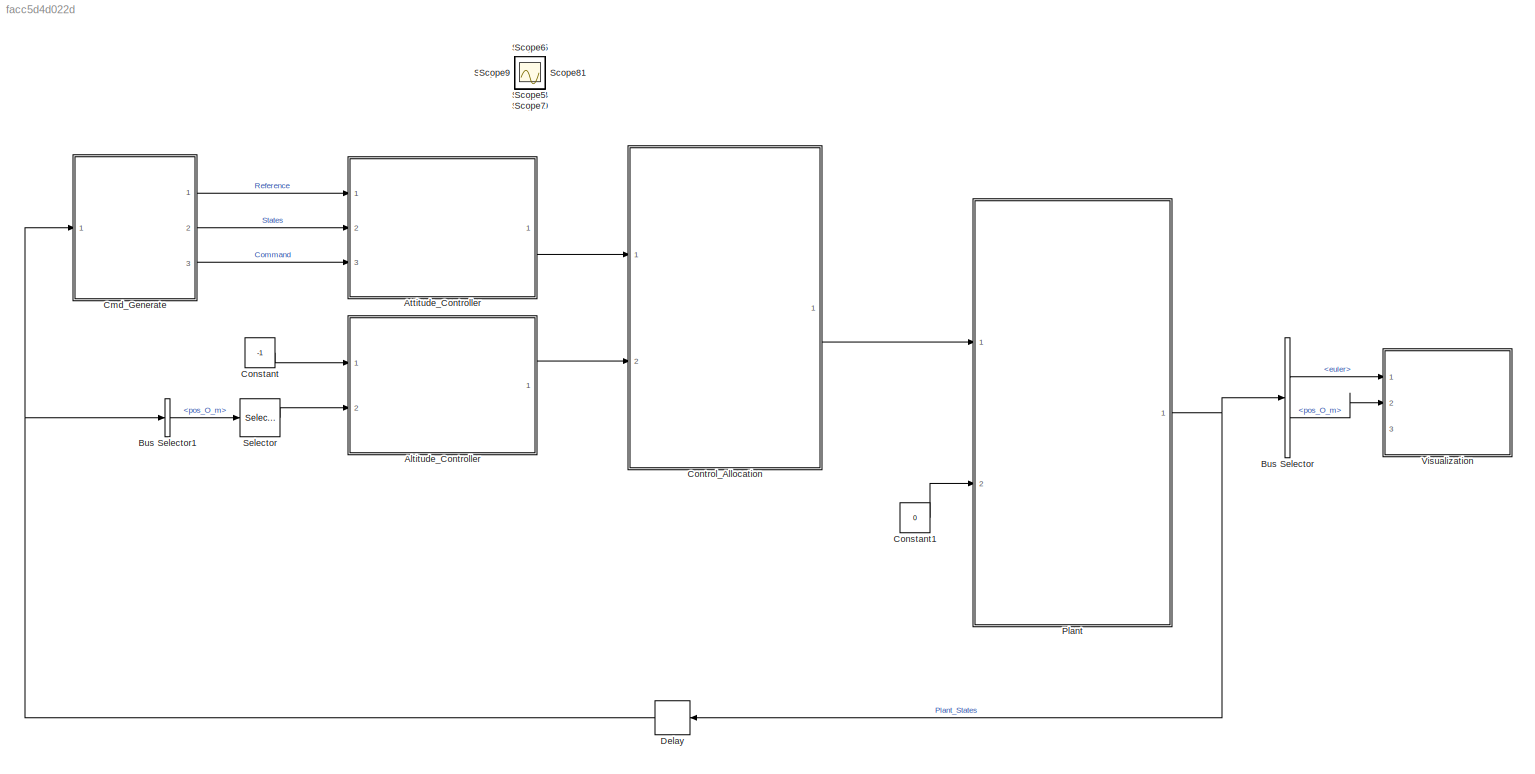
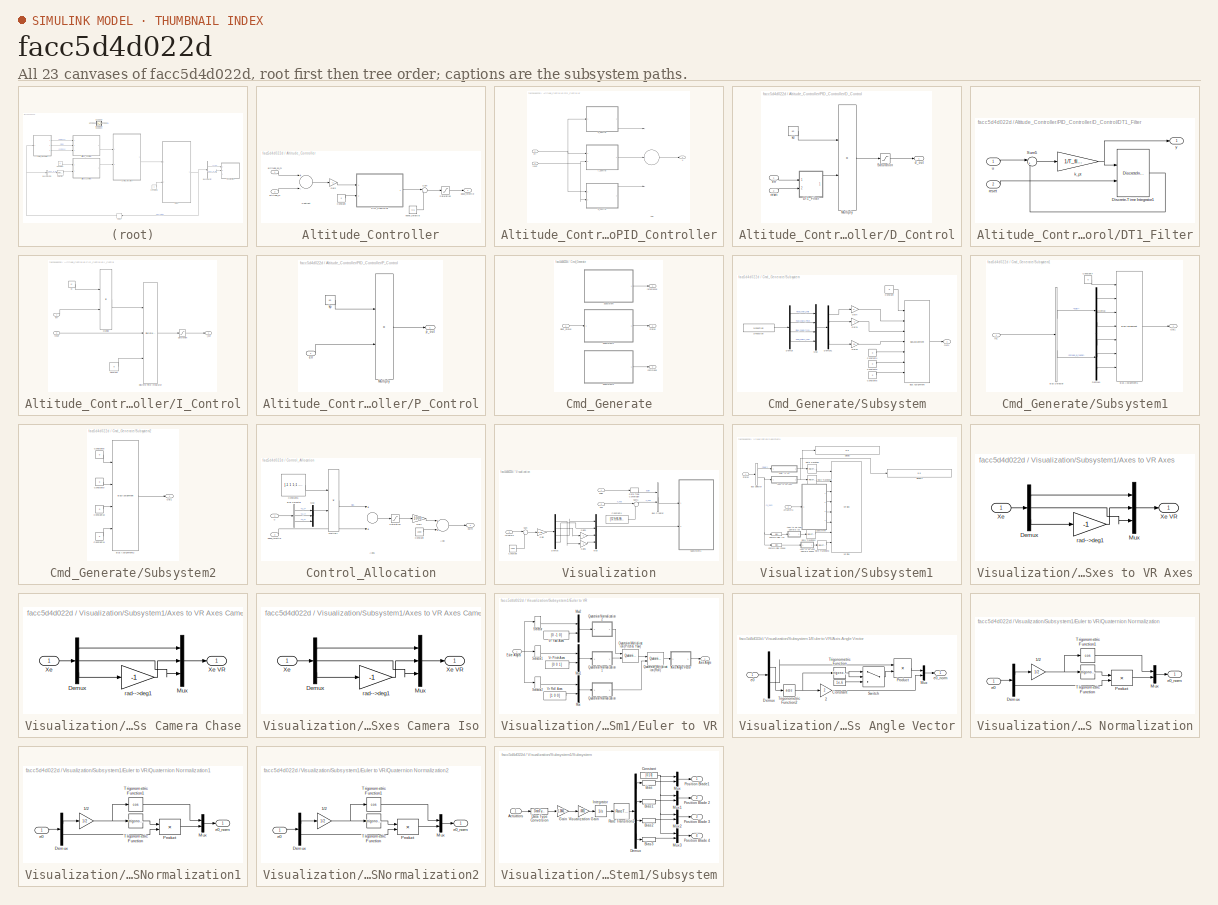
[diagram: thumbnail index - all 23 canvases of the model, root first then tree order]
MODEL slx_facc5d4d022d
KIND model
BLOCK [SubSystem] Altitude_Controller
  Ports = [2, 1]
  RequestExecContextInheritance = off
BLOCK [Constant] Altitude_Controller/Constant
  OutDataTypeStr = Inherit: Inherit via back propagation
  Value = 0
BLOCK [Gain] Altitude_Controller/Gain
  Gain = -1
  ParamDataTypeStr = Inherit: Inherit via internal rule
  SaturateOnIntegerOverflow = off
BLOCK [SubSystem] Altitude_Controller/PID_Controller
  Ports = [2, 1]
  RequestExecContextInheritance = off
BLOCK [Sum] Altitude_Controller/PID_Controller/Add
  AccumDataTypeStr = Inherit: Same as first input
  InputSameDT = off
  Inputs = +++
  OutDataTypeStr = Inherit: Inherit via internal rule
  Ports = [3, 1]
  SaturateOnIntegerOverflow = off
BLOCK [SubSystem] Altitude_Controller/PID_Controller/D_Control
  Ports = [2, 1]
  RequestExecContextInheritance = off
BLOCK [SubSystem] Altitude_Controller/PID_Controller/D_Control/DT1_Filter
  Ports = [2, 1]
  RequestExecContextInheritance = off
BLOCK [DiscreteIntegrator] Altitude_Controller/PID_Controller/D_Control/DT1_Filter/Discrete-Time Integrator1
  ExternalReset = level
  ICPrevOutput = DiscIntNeverNeededParam
  ICPrevScaledInput = DiscIntNeverNeededParam
  Ports = [2, 1]
  SampleTime = -1
BLOCK [Sum] Altitude_Controller/PID_Controller/D_Control/DT1_Filter/Sum5
  IconShape = round
  InputSameDT = off
  Inputs = |+-
  OutDataTypeStr = Inherit: Inherit via internal rule
  Ports = [2, 1]
  SaturateOnIntegerOverflow = off
BLOCK [Gain] Altitude_Controller/PID_Controller/D_Control/DT1_Filter/k_pt
  Gain = 1/T_filter
  ParamDataTypeStr = Inherit: Inherit via internal rule
  SaturateOnIntegerOverflow = off
BLOCK [Inport] Altitude_Controller/PID_Controller/D_Control/DT1_Filter/reset
  IconDisplay = Port number
  Port = 2
BLOCK [Inport] Altitude_Controller/PID_Controller/D_Control/DT1_Filter/u
  IconDisplay = Port number
BLOCK [Outport] Altitude_Controller/PID_Controller/D_Control/DT1_Filter/y
  IconDisplay = Port number
BLOCK [Product] Altitude_Controller/PID_Controller/D_Control/Multiply
  InputSameDT = off
  Ports = [2, 1]
  RndMeth = Floor
  SaturateOnIntegerOverflow = off
BLOCK [Saturate] Altitude_Controller/PID_Controller/D_Control/Saturation
  InputPortMap = u0
  LowerLimit = min_d
  Ports = [1, 1]
  UpperLimit = max_d
BLOCK [Outport] Altitude_Controller/PID_Controller/D_Control/d_out
  IconDisplay = Port number
BLOCK [Inport] Altitude_Controller/PID_Controller/D_Control/err
  IconDisplay = Port number
BLOCK [Constant] Altitude_Controller/PID_Controller/D_Control/kd
  OutDataTypeStr = single
  Value = kd
BLOCK [Inport] Altitude_Controller/PID_Controller/D_Control/reset
  IconDisplay = Port number
  Port = 2
BLOCK [SubSystem] Altitude_Controller/PID_Controller/I_Control
  Ports = [2, 1]
  RequestExecContextInheritance = off
BLOCK [Constant] Altitude_Controller/PID_Controller/I_Control/Constant
  OutDataTypeStr = single
  Value = 0
BLOCK [DiscreteIntegrator] Altitude_Controller/PID_Controller/I_Control/Discrete-Time Integrator
  ExternalReset = level
  ICPrevOutput = DiscIntNeverNeededParam
  ICPrevScaledInput = DiscIntNeverNeededParam
  InitialConditionSetting = Auto
  InitialConditionSource = external
  Ports = [3, 1]
  SampleTime = -1
BLOCK [Product] Altitude_Controller/PID_Controller/I_Control/Multiply
  InputSameDT = off
  Ports = [2, 1]
  RndMeth = Floor
  SaturateOnIntegerOverflow = off
BLOCK [Saturate] Altitude_Controller/PID_Controller/I_Control/Saturation
  InputPortMap = u0
  LowerLimit = min_i
  Ports = [1, 1]
  UpperLimit = max_i
BLOCK [Inport] Altitude_Controller/PID_Controller/I_Control/err
  IconDisplay = Port number
BLOCK [Outport] Altitude_Controller/PID_Controller/I_Control/i_out
  IconDisplay = Port number
BLOCK [Constant] Altitude_Controller/PID_Controller/I_Control/ki
  OutDataTypeStr = single
  Value = ki
BLOCK [Inport] Altitude_Controller/PID_Controller/I_Control/reset
  IconDisplay = Port number
  Port = 2
BLOCK [SubSystem] Altitude_Controller/PID_Controller/P_Control
  Ports = [1, 1]
  RequestExecContextInheritance = off
BLOCK [Product] Altitude_Controller/PID_Controller/P_Control/Multiply
  InputSameDT = off
  Ports = [2, 1]
  RndMeth = Floor
  SaturateOnIntegerOverflow = off
BLOCK [Inport] Altitude_Controller/PID_Controller/P_Control/err
  IconDisplay = Port number
BLOCK [Constant] Altitude_Controller/PID_Controller/P_Control/kp
  OutDataTypeStr = single
  Value = kp
BLOCK [Outport] Altitude_Controller/PID_Controller/P_Control/p_out
  IconDisplay = Port number
BLOCK [Inport] Altitude_Controller/PID_Controller/err
  IconDisplay = Port number
BLOCK [Inport] Altitude_Controller/PID_Controller/reset
  IconDisplay = Port number
  Port = 2
BLOCK [Outport] Altitude_Controller/PID_Controller/u
  IconDisplay = Port number
BLOCK [Saturate] Altitude_Controller/Saturation
  InputPortMap = u0
  LowerLimit = -1
  Ports = [1, 1]
  UpperLimit = 1
BLOCK [Sum] Altitude_Controller/Subtract
  InputSameDT = off
  Inputs = +-
  OutDataTypeStr = Inherit: Inherit via internal rule
  Ports = [2, 1]
  SaturateOnIntegerOverflow = off
BLOCK [Sum] Altitude_Controller/Sum
  IconShape = round
  InputSameDT = off
  Inputs = |++
  OutDataTypeStr = Inherit: Inherit via internal rule
  Ports = [2, 1]
  SaturateOnIntegerOverflow = off
BLOCK [Inport] Altitude_Controller/altitude_m
  IconDisplay = Port number
  Port = 2
BLOCK [Inport] Altitude_Controller/altitude_sp_m
  IconDisplay = Port number
BLOCK [Outport] Altitude_Controller/base_throttle
  IconDisplay = Port number
BLOCK [Constant] Altitude_Controller/hover_throttle
  OutDataTypeStr = Inherit: Inherit via back propagation
  Value = 0.5
BLOCK [ModelReference] Attitude_Controller
  ModelNameDialog = PID.slx
  ModelReferenceVersion = 1.68
  Ports = [3, 1]
BLOCK [BusSelector] Bus Selector
  OutputAsBus = off
  OutputSignals = euler,pos_O_m
  Ports = [1, 2]
BLOCK [BusSelector] Bus Selector1
  OutputAsBus = off
  OutputSignals = pos_O_m
  Ports = [1, 1]
BLOCK [SubSystem] Cmd_Generate
  Ports = [1, 3]
  RequestExecContextInheritance = off
BLOCK [Inport] Cmd_Generate/Plant_States
  IconDisplay = Port number
BLOCK [SubSystem] Cmd_Generate/Subsystem
  Ports = [0, 1]
  RequestExecContextInheritance = off
BLOCK [BusAssignment] Cmd_Generate/Subsystem/Bus Assignment
  AssignedSignals = phi_ref_rad,theta_ref_rad,psi_ref_rad,p_ref_radDs,q_ref_radDs,r_ref_radDs
  Ports = [7, 1]
BLOCK [Constant] Cmd_Generate/Subsystem/Constant
  OutDataTypeStr = Bus: Reference
  Value = 0
BLOCK [Constant] Cmd_Generate/Subsystem/Constant4
  OutDataTypeStr = Inherit: Inherit via back propagation
  Value = 0
BLOCK [Constant] Cmd_Generate/Subsystem/Constant5
  OutDataTypeStr = Inherit: Inherit via back propagation
  Value = 0
BLOCK [Constant] Cmd_Generate/Subsystem/Constant6
  OutDataTypeStr = Inherit: Inherit via back propagation
  Value = 0
BLOCK [Demux] Cmd_Generate/Subsystem/Demux
  DisplayOption = bar
  Ports = [1, 4]
BLOCK [Demux] Cmd_Generate/Subsystem/Demux1
  DisplayOption = bar
  Ports = [1, 4]
BLOCK [Gain] Cmd_Generate/Subsystem/Gain
  LockScale = on
  OutDataTypeStr = single
  ParamDataTypeStr = Inherit: Inherit via internal rule
  SaturateOnIntegerOverflow = off
BLOCK [Gain] Cmd_Generate/Subsystem/Gain1
  Gain = -1
  LockScale = on
  OutDataTypeStr = single
  ParamDataTypeStr = Inherit: Inherit via internal rule
  SaturateOnIntegerOverflow = off
BLOCK [Gain] Cmd_Generate/Subsystem/Gain2
  Gain = 0.1
  LockScale = on
  OutDataTypeStr = single
  ParamDataTypeStr = Inherit: Inherit via internal rule
  SaturateOnIntegerOverflow = off
BLOCK [Mux] Cmd_Generate/Subsystem/Mux
  DisplayOption = bar
  Ports = [4, 1]
BLOCK [Outport] Cmd_Generate/Subsystem/Out1
  IconDisplay = Port number
BLOCK [S-Function] Cmd_Generate/Subsystem/S-Function
  EnableBusSupport = off
  FunctionName = serialToMavlink_RcRaw
  Ports = [0, 1]
  SFcnIsStateOwnerBlock = off
  SFunctionDeploymentMode = off
BLOCK [SubSystem] Cmd_Generate/Subsystem1
  Ports = [1, 1]
  RequestExecContextInheritance = off
BLOCK [BusAssignment] Cmd_Generate/Subsystem1/Bus Assignment1
  AssignedSignals = phi_rad,theta_rad,psi_rad,p_radDs,q_radDs,r_radDs
  Ports = [7, 1]
BLOCK [BusSelector] Cmd_Generate/Subsystem1/Bus Selector
  OutputAsBus = off
  OutputSignals = euler,omega_B_radDs
  Ports = [1, 2]
BLOCK [Constant] Cmd_Generate/Subsystem1/Constant7
  OutDataTypeStr = Bus: States
  Value = 0
BLOCK [Demux] Cmd_Generate/Subsystem1/Demux
  DisplayOption = bar
  Outputs = 3
  Ports = [1, 3]
BLOCK [Demux] Cmd_Generate/Subsystem1/Demux1
  DisplayOption = bar
  Outputs = 3
  Ports = [1, 3]
BLOCK [Inport] Cmd_Generate/Subsystem1/In1
  IconDisplay = Port number
BLOCK [Outport] Cmd_Generate/Subsystem1/Out1
  IconDisplay = Port number
BLOCK [SubSystem] Cmd_Generate/Subsystem2
  Ports = [0, 1]
  RequestExecContextInheritance = off
BLOCK [BusAssignment] Cmd_Generate/Subsystem2/Bus Assignment2
  AssignedSignals = reset,mode,base_throttle
  Ports = [4, 1]
BLOCK [Constant] Cmd_Generate/Subsystem2/Constant10
  OutDataTypeStr = Inherit: Inherit via back propagation
  Value = 0
BLOCK [Constant] Cmd_Generate/Subsystem2/Constant11
  OutDataTypeStr = Inherit: Inherit via back propagation
  Value = 0
BLOCK [Constant] Cmd_Generate/Subsystem2/Constant8
  OutDataTypeStr = Bus: Command
  Value = 0
BLOCK [Constant] Cmd_Generate/Subsystem2/Constant9
  OutDataTypeStr = Inherit: Inherit via back propagation
  Value = 0
BLOCK [Outport] Cmd_Generate/Subsystem2/Out1
  IconDisplay = Port number
BLOCK [Outport] Cmd_Generate/command
  IconDisplay = Port number
  Port = 3
BLOCK [Outport] Cmd_Generate/refenrence
  IconDisplay = Port number
BLOCK [Outport] Cmd_Generate/states
  IconDisplay = Port number
  Port = 2
BLOCK [Constant] Constant
  OutDataTypeStr = Inherit: Inherit via back propagation
  Value = -1
BLOCK [Constant] Constant1
  OutDataTypeStr = Inherit: Inherit via back propagation
  Value = 0
BLOCK [SubSystem] Control_Allocation
  Ports = [2, 1]
  RequestExecContextInheritance = off
BLOCK [Sum] Control_Allocation/Add
  InputSameDT = off
  OutDataTypeStr = Inherit: Inherit via internal rule
  Ports = [2, 1]
  SaturateOnIntegerOverflow = off
BLOCK [Sum] Control_Allocation/Add1
  InputSameDT = off
  Ports = [2, 1]
  SaturateOnIntegerOverflow = off
BLOCK [BusSelector] Control_Allocation/Bus Selector
  OutputAsBus = off
  OutputSignals = u_x,u_y,u_z
  Ports = [1, 3]
BLOCK [Constant] Control_Allocation/Constant
  OutDataTypeStr = uint16
  Value = 1000
BLOCK [Constant] Control_Allocation/Constant6
  OutDataTypeStr = single
  Value = [-1 1 1;1 -1 1;1 1 -1;-1 -1 -1]
BLOCK [Gain] Control_Allocation/Gain
  Gain = 1000
  OutDataTypeStr = uint16
  ParamDataTypeStr = Inherit: Inherit via internal rule
  SaturateOnIntegerOverflow = off
BLOCK [Product] Control_Allocation/Multiply
  InputSameDT = off
  Multiplication = Matrix(*)
  Ports = [2, 1]
  RndMeth = Floor
  SaturateOnIntegerOverflow = off
BLOCK [Mux] Control_Allocation/Mux
  DisplayOption = bar
  Inputs = 3
  Ports = [3, 1]
BLOCK [Saturate] Control_Allocation/Saturation
  InputPortMap = u0
  LowerLimit = 0
  Ports = [1, 1]
  UpperLimit = 1
BLOCK [Inport] Control_Allocation/base_throttle
  IconDisplay = Port number
  Port = 2
BLOCK [Outport] Control_Allocation/pwm
  IconDisplay = Port number
BLOCK [Inport] Control_Allocation/u
  IconDisplay = Port number
BLOCK [Delay] Delay
  DelayLength = 1
  InputPortMap = u0
  Ports = [1, 1]
BLOCK [ModelReference] Plant
  ModelNameDialog = Model.slx
  ModelReferenceVersion = 1.125
  Ports = [2, 1]
BLOCK [Scope] Scope
  Floating = off
  IOType = viewer
  NumInputPorts = 1
  Ports = []
  ScopeSpecificationString = Simulink.scopes.TimeScopeBlockCfg('CurrentConfiguration', extmgr.ConfigurationSet(extmgr.Configuration('Core','General UI',true),extmgr.Configuration('Core','Source UI',true),extmgr.Configuration('Sources','WiredSimulink',true),extmgr.Configuration('Visuals','Time Domain',true,'SerializedDisplays',{struct('MinYLimReal','-0.32725','MaxYLimReal','0.32725','YLabelReal','','MinYLimMag','0.00000','MaxY...<+1350ch>
BLOCK [Scope] Scope1
  Floating = off
  IOType = viewer
  NumInputPorts = 1
  Ports = []
  ScopeSpecificationString = Simulink.scopes.TimeScopeBlockCfg('CurrentConfiguration', extmgr.ConfigurationSet(extmgr.Configuration('Core','General UI',true),extmgr.Configuration('Core','Source UI',true),extmgr.Configuration('Sources','WiredSimulink',true,'DataLoggingVariableName','ScopeData1'),extmgr.Configuration('Visuals','Time Domain',true,'SerializedDisplays',{struct('MinYLimReal','-0.32725','MaxYLimReal','0.32725','YLab...<+1389ch>
BLOCK [Scope] Scope10
  Floating = off
  IOType = viewer
  NumInputPorts = 1
  Ports = []
  ScopeSpecificationString = Simulink.scopes.TimeScopeBlockCfg('CurrentConfiguration', extmgr.ConfigurationSet(extmgr.Configuration('Core','General UI',true),extmgr.Configuration('Core','Source UI',true),extmgr.Configuration('Sources','WiredSimulink',true,'DataLoggingVariableName','ScopeData1'),extmgr.Configuration('Visuals','Time Domain',true,'SerializedDisplays',{struct('MinYLimReal','-0.00649','MaxYLimReal','0.02667','YLab...<+1389ch>
BLOCK [Scope] Scope11
  Floating = off
  IOType = viewer
  NumInputPorts = 1
  Ports = []
  ScopeSpecificationString = Simulink.scopes.TimeScopeBlockCfg('CurrentConfiguration', extmgr.ConfigurationSet(extmgr.Configuration('Core','General UI',true),extmgr.Configuration('Core','Source UI',true),extmgr.Configuration('Sources','WiredSimulink',true,'DataLoggingVariableName','ScopeData2'),extmgr.Configuration('Visuals','Time Domain',true,'SerializedDisplays',{struct('MinYLimReal','-0.5','MaxYLimReal','-0.3','YLabelReal'...<+1367ch>
BLOCK [Scope] Scope13
  Floating = off
  IOType = viewer
  NumInputPorts = 1
  Ports = []
  ScopeSpecificationString = Simulink.scopes.TimeScopeBlockCfg('CurrentConfiguration', extmgr.ConfigurationSet(extmgr.Configuration('Core','General UI',true),extmgr.Configuration('Core','Source UI',true),extmgr.Configuration('Sources','WiredSimulink',true,'DataLoggingVariableName','ScopeData1'),extmgr.Configuration('Visuals','Time Domain',true,'SerializedDisplays',{struct('MinYLimReal','0.62144','MaxYLimReal','0.82144','YLabe...<+1387ch>
BLOCK [Scope] Scope14
  Floating = off
  IOType = viewer
  NumInputPorts = 1
  Ports = []
  ScopeSpecificationString = Simulink.scopes.TimeScopeBlockCfg('CurrentConfiguration', extmgr.ConfigurationSet(extmgr.Configuration('Core','General UI',true),extmgr.Configuration('Core','Source UI',true),extmgr.Configuration('Sources','WiredSimulink',true,'DataLoggingVariableName','ScopeData2'),extmgr.Configuration('Visuals','Time Domain',true,'SerializedDisplays',{struct('MinYLimReal','0.24731','MaxYLimReal','0.44731','YLabe...<+1387ch>
BLOCK [Scope] Scope15
  Floating = off
  IOType = viewer
  NumInputPorts = 1
  Ports = []
  ScopeSpecificationString = Simulink.scopes.TimeScopeBlockCfg('CurrentConfiguration', extmgr.ConfigurationSet(extmgr.Configuration('Core','General UI',true),extmgr.Configuration('Core','Source UI',true),extmgr.Configuration('Sources','WiredSimulink',true,'DataLoggingVariableName','ScopeData1'),extmgr.Configuration('Visuals','Time Domain',true,'SerializedDisplays',{struct('MinYLimReal','-0.00281','MaxYLimReal','0.00731','YLab...<+1502ch>
BLOCK [Scope] Scope2
  Floating = off
  IOType = viewer
  NumInputPorts = 1
  Ports = []
  ScopeSpecificationString = Simulink.scopes.TimeScopeBlockCfg('CurrentConfiguration', extmgr.ConfigurationSet(extmgr.Configuration('Core','General UI',true),extmgr.Configuration('Core','Source UI',true),extmgr.Configuration('Sources','WiredSimulink',true,'DataLoggingVariableName','ScopeData2'),extmgr.Configuration('Visuals','Time Domain',true,'SerializedDisplays',{struct('MinYLimReal','-77.53625','MaxYLimReal','697.82627','Y...<+1399ch>
BLOCK [Scope] Scope3
  Floating = off
  IOType = viewer
  NumInputPorts = 1
  Ports = []
  ScopeSpecificationString = Simulink.scopes.TimeScopeBlockCfg('CurrentConfiguration', extmgr.ConfigurationSet(extmgr.Configuration('Core','General UI',true),extmgr.Configuration('Core','Source UI',true),extmgr.Configuration('Sources','WiredSimulink',true,'DataLoggingVariableName','ScopeData3'),extmgr.Configuration('Visuals','Time Domain',true,'SerializedDisplays',{struct('MinYLimReal','-71.5585','MaxYLimReal','644.02649','YL...<+1397ch>
BLOCK [Scope] Scope4
  Floating = off
  IOType = viewer
  NumInputPorts = 1
  Ports = []
  ScopeSpecificationString = Simulink.scopes.TimeScopeBlockCfg('CurrentConfiguration', extmgr.ConfigurationSet(extmgr.Configuration('Core','General UI',true),extmgr.Configuration('Core','Source UI',true),extmgr.Configuration('Sources','WiredSimulink',true,'DataLoggingVariableName','ScopeData4'),extmgr.Configuration('Visuals','Time Domain',true,'SerializedDisplays',{struct('MinYLimReal','-77.57989','MaxYLimReal','698.21897','Y...<+1399ch>
BLOCK [Scope] Scope5
  Floating = off
  IOType = viewer
  NumInputPorts = 1
  Ports = []
  ScopeSpecificationString = Simulink.scopes.TimeScopeBlockCfg('CurrentConfiguration', extmgr.ConfigurationSet(extmgr.Configuration('Core','General UI',true),extmgr.Configuration('Core','Source UI',true),extmgr.Configuration('Sources','WiredSimulink',true,'DataLoggingVariableName','ScopeData5'),extmgr.Configuration('Visuals','Time Domain',true,'SerializedDisplays',{struct('MinYLimReal','0.01375','MaxYLimReal','0.01625','YLabe...<+1420ch>
BLOCK [Scope] Scope6
  Floating = off
  IOType = viewer
  NumInputPorts = 1
  Ports = []
  ScopeSpecificationString = Simulink.scopes.TimeScopeBlockCfg('CurrentConfiguration', extmgr.ConfigurationSet(extmgr.Configuration('Core','General UI',true),extmgr.Configuration('Core','Source UI',true),extmgr.Configuration('Sources','WiredSimulink',true,'DataLoggingVariableName','ScopeData6'),extmgr.Configuration('Visuals','Time Domain',true,'SerializedDisplays',{struct('MinYLimReal','0.00375','MaxYLimReal','0.00625','YLabe...<+1395ch>
BLOCK [Scope] Scope7
  Floating = off
  IOType = viewer
  NumInputPorts = 1
  Ports = []
  ScopeSpecificationString = Simulink.scopes.TimeScopeBlockCfg('CurrentConfiguration', extmgr.ConfigurationSet(extmgr.Configuration('Core','General UI',true),extmgr.Configuration('Core','Source UI',true),extmgr.Configuration('Sources','WiredSimulink',true,'DataLoggingVariableName','ScopeData1'),extmgr.Configuration('Visuals','Time Domain',true,'SerializedDisplays',{struct('MinYLimReal','2.30574','MaxYLimReal','3.70824','YLabe...<+1419ch>
BLOCK [Scope] Scope8
  Floating = off
  IOType = viewer
  NumInputPorts = 1
  Ports = []
  ScopeSpecificationString = Simulink.scopes.TimeScopeBlockCfg('CurrentConfiguration', extmgr.ConfigurationSet(extmgr.Configuration('Core','General UI',true),extmgr.Configuration('Core','Source UI',true),extmgr.Configuration('Sources','WiredSimulink',true,'DataLoggingVariableName','ScopeData1'),extmgr.Configuration('Visuals','Time Domain',true,'SerializedDisplays',{struct('MinYLimReal','-0.5','MaxYLimReal','-0.3','YLabelReal'...<+1367ch>
BLOCK [Scope] Scope9
  Floating = off
  IOType = viewer
  NumInputPorts = 1
  Ports = []
  ScopeSpecificationString = Simulink.scopes.TimeScopeBlockCfg('CurrentConfiguration', extmgr.ConfigurationSet(extmgr.Configuration('Core','General UI',true),extmgr.Configuration('Core','Source UI',true),extmgr.Configuration('Sources','WiredSimulink',true,'DataLoggingVariableName','ScopeData2'),extmgr.Configuration('Visuals','Time Domain',true,'SerializedDisplays',{struct('MinYLimReal','-0.5','MaxYLimReal','-0.3','YLabelReal'...<+1367ch>
BLOCK [Selector] Selector
  IndexOptions = Index vector (dialog)
  Indices = 3
  InputPortWidth = 3
  OutputSizes = 1
  Ports = [1, 1]
BLOCK [SubSystem] Visualization
  Ports = [3]
  RequestExecContextInheritance = off
BLOCK [Inport] Visualization/Actuators
  IconDisplay = Port number
  Port = 3
BLOCK [BusCreator] Visualization/Bus Creator
  DisplayOption = bar
  InheritFromInputs = on
  Inputs = 2
  Ports = [2, 1]
BLOCK [Constant] Visualization/Constant
  OutDataTypeStr = uint16
  Value = 1000
BLOCK [Constant] Visualization/Constant4
  OutDataTypeStr = Inherit: Inherit via back propagation
  Value = [57.9;95.99;-0.67]
BLOCK [DataTypeConversion] Visualization/Data Type Conversion
  RndMeth = Floor
  SaturateOnIntegerOverflow = off
BLOCK [Demux] Visualization/Demux
  DisplayOption = bar
  Ports = [1, 4]
BLOCK [Inport] Visualization/Euler
  IconDisplay = Port number
BLOCK [Gain] Visualization/Gain
  Gain = 0.05
  ParamDataTypeStr = Inherit: Inherit via internal rule
  SaturateOnIntegerOverflow = off
BLOCK [Gain] Visualization/Gain1
  Gain = -1
  ParamDataTypeStr = Inherit: Inherit via internal rule
  SaturateOnIntegerOverflow = off
BLOCK [Gain] Visualization/Gain2
  Gain = -1
  ParamDataTypeStr = Inherit: Inherit via internal rule
  SaturateOnIntegerOverflow = off
BLOCK [Mux] Visualization/Mux
  DisplayOption = bar
  Ports = [4, 1]
BLOCK [Inport] Visualization/Pos
  IconDisplay = Port number
  Port = 2
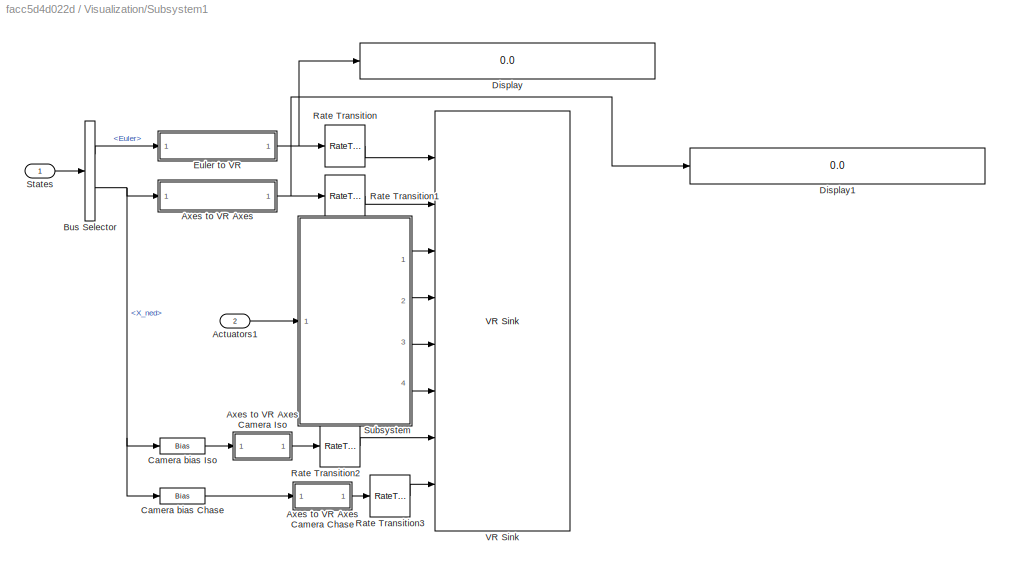
BLOCK [SubSystem] Visualization/Subsystem1
  Ports = [2]
  RequestExecContextInheritance = off
BLOCK [Inport] Visualization/Subsystem1/Actuators1
  IconDisplay = Port number
  Port = 2
BLOCK [SubSystem] Visualization/Subsystem1/Axes to VR Axes
  Ports = [1, 1]
  RequestExecContextInheritance = off
BLOCK [SubSystem] Visualization/Subsystem1/Axes to VR Axes Camera Chase
  Ports = [1, 1]
  RequestExecContextInheritance = off
BLOCK [Demux] Visualization/Subsystem1/Axes to VR Axes Camera Chase/Demux
  Outputs = 3
  Ports = [1, 3]
BLOCK [Mux] Visualization/Subsystem1/Axes to VR Axes Camera Chase/Mux
  DisplayOption = bar
  Inputs = 3
  Ports = [3, 1]
BLOCK [Inport] Visualization/Subsystem1/Axes to VR Axes Camera Chase/Xe
  IconDisplay = Port number
BLOCK [Outport] Visualization/Subsystem1/Axes to VR Axes Camera Chase/Xe VR
  IconDisplay = Port number
BLOCK [Gain] Visualization/Subsystem1/Axes to VR Axes Camera Chase/rad-->deg1
  Gain = -1
BLOCK [SubSystem] Visualization/Subsystem1/Axes to VR Axes Camera Iso
  Ports = [1, 1]
  RequestExecContextInheritance = off
BLOCK [Demux] Visualization/Subsystem1/Axes to VR Axes Camera Iso/Demux
  Outputs = 3
  Ports = [1, 3]
BLOCK [Mux] Visualization/Subsystem1/Axes to VR Axes Camera Iso/Mux
  DisplayOption = bar
  Inputs = 3
  Ports = [3, 1]
BLOCK [Inport] Visualization/Subsystem1/Axes to VR Axes Camera Iso/Xe
  IconDisplay = Port number
BLOCK [Outport] Visualization/Subsystem1/Axes to VR Axes Camera Iso/Xe VR
  IconDisplay = Port number
BLOCK [Gain] Visualization/Subsystem1/Axes to VR Axes Camera Iso/rad-->deg1
  Gain = -1
BLOCK [Demux] Visualization/Subsystem1/Axes to VR Axes/Demux
  Outputs = 3
  Ports = [1, 3]
BLOCK [Mux] Visualization/Subsystem1/Axes to VR Axes/Mux
  DisplayOption = bar
  Inputs = 3
  Ports = [3, 1]
BLOCK [Inport] Visualization/Subsystem1/Axes to VR Axes/Xe
  IconDisplay = Port number
BLOCK [Outport] Visualization/Subsystem1/Axes to VR Axes/Xe VR
  IconDisplay = Port number
BLOCK [Gain] Visualization/Subsystem1/Axes to VR Axes/rad-->deg1
  Gain = -1
BLOCK [BusSelector] Visualization/Subsystem1/Bus Selector
  OutputAsBus = off
  OutputSignals = Euler,X_ned
  Ports = [1, 2]
BLOCK [Bias] Visualization/Subsystem1/Camera bias Chase
  Bias = [-4 0 -.9558]'
  SaturateOnIntegerOverflow = off
BLOCK [Bias] Visualization/Subsystem1/Camera bias Iso
  Bias = [0.9009 .99 -.6247]'
  SaturateOnIntegerOverflow = off
BLOCK [Display] Visualization/Subsystem1/Display
  Decimation = 1
  Ports = [1]
BLOCK [Display] Visualization/Subsystem1/Display1
  Decimation = 1
  Ports = [1]
BLOCK [SubSystem] Visualization/Subsystem1/Euler to VR
  Ports = [1, 1]
  RequestExecContextInheritance = off
BLOCK [Outport] Visualization/Subsystem1/Euler to VR/Axis Angle
  IconDisplay = Port number
BLOCK [SubSystem] Visualization/Subsystem1/Euler to VR/Axis Angle Vector
  Ports = [1, 1]
  RequestExecContextInheritance = off
BLOCK [Gain] Visualization/Subsystem1/Euler to VR/Axis Angle Vector/2
  Gain = 2
BLOCK [Constant] Visualization/Subsystem1/Euler to VR/Axis Angle Vector/Constant
  Value = 1e-6
BLOCK [Demux] Visualization/Subsystem1/Euler to VR/Axis Angle Vector/Demux
  Outputs = [1 3 ]
  Ports = [1, 2]
BLOCK [Mux] Visualization/Subsystem1/Euler to VR/Axis Angle Vector/Mux
  DisplayOption = bar
  Inputs = 2
  Ports = [2, 1]
BLOCK [Product] Visualization/Subsystem1/Euler to VR/Axis Angle Vector/Product
  Inputs = */
  Ports = [2, 1]
  RndMeth = Floor
BLOCK [Switch] Visualization/Subsystem1/Euler to VR/Axis Angle Vector/Switch
  Criteria = u2 ~= 0
  InputSameDT = off
  SaturateOnIntegerOverflow = off
BLOCK [Trigonometry] Visualization/Subsystem1/Euler to VR/Axis Angle Vector/Trigonometric Function
  Ports = [1, 1]
BLOCK [Trigonometry] Visualization/Subsystem1/Euler to VR/Axis Angle Vector/Trigonometric Function2
  Operator = acos
  Ports = [1, 1]
BLOCK [Inport] Visualization/Subsystem1/Euler to VR/Axis Angle Vector/e0
  IconDisplay = Port number
BLOCK [Outport] Visualization/Subsystem1/Euler to VR/Axis Angle Vector/e0_norm
  IconDisplay = Port number
BLOCK [Inport] Visualization/Subsystem1/Euler to VR/Euler Angles
  IconDisplay = Port number
BLOCK [Mux] Visualization/Subsystem1/Euler to VR/Mux
  DisplayOption = bar
  Inputs = 2
  Ports = [2, 1]
BLOCK [Mux] Visualization/Subsystem1/Euler to VR/Mux1
  DisplayOption = bar
  Inputs = 2
  Ports = [2, 1]
BLOCK [Mux] Visualization/Subsystem1/Euler to VR/Mux2
  DisplayOption = bar
  Inputs = 2
  Ports = [2, 1]
BLOCK [Reference] Visualization/Subsystem1/Euler to VR/Quaternion Multiplication (Pitch & Yaw)  REF=aerolibutil/Quaternion
Multiplication
  Ports = [2, 1]
  SourceBlock = aerolibutil/Quaternion\nMultiplication
  SourceProductBaseCode = AE
  SourceProductName = Aerospace Blockset
  SourceType = Quaternion Multiplication
BLOCK [Reference] Visualization/Subsystem1/Euler to VR/Quaternion Multiplication (Roll)  REF=aerolibutil/Quaternion
Multiplication
  Ports = [2, 1]
  SourceBlock = aerolibutil/Quaternion\nMultiplication
  SourceProductBaseCode = AE
  SourceProductName = Aerospace Blockset
  SourceType = Quaternion Multiplication
BLOCK [SubSystem] Visualization/Subsystem1/Euler to VR/Quaternion Normalization
  Ports = [1, 1]
  RequestExecContextInheritance = off
BLOCK [Gain] Visualization/Subsystem1/Euler to VR/Quaternion Normalization/1//2
  Gain = 1/2
BLOCK [Demux] Visualization/Subsystem1/Euler to VR/Quaternion Normalization/Demux
  Outputs = [1 3]
  Ports = [1, 2]
BLOCK [Mux] Visualization/Subsystem1/Euler to VR/Quaternion Normalization/Mux
  DisplayOption = bar
  Inputs = 2
  Ports = [2, 1]
BLOCK [Product] Visualization/Subsystem1/Euler to VR/Quaternion Normalization/Product
  Ports = [2, 1]
  RndMeth = Floor
BLOCK [Trigonometry] Visualization/Subsystem1/Euler to VR/Quaternion Normalization/Trigonometric Function
  Ports = [1, 1]
BLOCK [Trigonometry] Visualization/Subsystem1/Euler to VR/Quaternion Normalization/Trigonometric Function1
  Operator = cos
  Ports = [1, 1]
BLOCK [Inport] Visualization/Subsystem1/Euler to VR/Quaternion Normalization/e0
  IconDisplay = Port number
BLOCK [Outport] Visualization/Subsystem1/Euler to VR/Quaternion Normalization/e0_norm
  IconDisplay = Port number
BLOCK [SubSystem] Visualization/Subsystem1/Euler to VR/Quaternion Normalization1
  Ports = [1, 1]
  RequestExecContextInheritance = off
BLOCK [Gain] Visualization/Subsystem1/Euler to VR/Quaternion Normalization1/1//2
  Gain = 1/2
BLOCK [Demux] Visualization/Subsystem1/Euler to VR/Quaternion Normalization1/Demux
  Outputs = [1 3]
  Ports = [1, 2]
BLOCK [Mux] Visualization/Subsystem1/Euler to VR/Quaternion Normalization1/Mux
  DisplayOption = bar
  Inputs = 2
  Ports = [2, 1]
BLOCK [Product] Visualization/Subsystem1/Euler to VR/Quaternion Normalization1/Product
  Ports = [2, 1]
  RndMeth = Floor
BLOCK [Trigonometry] Visualization/Subsystem1/Euler to VR/Quaternion Normalization1/Trigonometric Function
  Ports = [1, 1]
BLOCK [Trigonometry] Visualization/Subsystem1/Euler to VR/Quaternion Normalization1/Trigonometric Function1
  Operator = cos
  Ports = [1, 1]
BLOCK [Inport] Visualization/Subsystem1/Euler to VR/Quaternion Normalization1/e0
  IconDisplay = Port number
BLOCK [Outport] Visualization/Subsystem1/Euler to VR/Quaternion Normalization1/e0_norm
  IconDisplay = Port number
BLOCK [SubSystem] Visualization/Subsystem1/Euler to VR/Quaternion Normalization2
  Ports = [1, 1]
  RequestExecContextInheritance = off
BLOCK [Gain] Visualization/Subsystem1/Euler to VR/Quaternion Normalization2/1//2
  Gain = 1/2
BLOCK [Demux] Visualization/Subsystem1/Euler to VR/Quaternion Normalization2/Demux
  Outputs = [1 3]
  Ports = [1, 2]
BLOCK [Mux] Visualization/Subsystem1/Euler to VR/Quaternion Normalization2/Mux
  DisplayOption = bar
  Inputs = 2
  Ports = [2, 1]
BLOCK [Product] Visualization/Subsystem1/Euler to VR/Quaternion Normalization2/Product
  Ports = [2, 1]
  RndMeth = Floor
BLOCK [Trigonometry] Visualization/Subsystem1/Euler to VR/Quaternion Normalization2/Trigonometric Function
  Ports = [1, 1]
BLOCK [Trigonometry] Visualization/Subsystem1/Euler to VR/Quaternion Normalization2/Trigonometric Function1
  Operator = cos
  Ports = [1, 1]
BLOCK [Inport] Visualization/Subsystem1/Euler to VR/Quaternion Normalization2/e0
  IconDisplay = Port number
BLOCK [Outport] Visualization/Subsystem1/Euler to VR/Quaternion Normalization2/e0_norm
  IconDisplay = Port number
BLOCK [Selector] Visualization/Subsystem1/Euler to VR/Selector
  IndexOptions = Index vector (dialog)
  Indices = [3]
  InputPortWidth = 3
  OutputSizes = 1
  Ports = [1, 1]
BLOCK [Selector] Visualization/Subsystem1/Euler to VR/Selector1
  IndexOptions = Index vector (dialog)
  Indices = [2]
  InputPortWidth = 3
  OutputSizes = 1
  Ports = [1, 1]
BLOCK [Selector] Visualization/Subsystem1/Euler to VR/Selector2
  IndexOptions = Index vector (dialog)
  Indices = [1]
  InputPortWidth = 3
  OutputSizes = 1
  Ports = [1, 1]
BLOCK [Constant] Visualization/Subsystem1/Euler to VR/Vr Pitch Axes
  Value = [0 0 1]
BLOCK [Constant] Visualization/Subsystem1/Euler to VR/Vr Roll Axes
  Value = [1 0 0]
BLOCK [Constant] Visualization/Subsystem1/Euler to VR/Vr Yaw Axes
  Value = [0 -1 0]
BLOCK [RateTransition] Visualization/Subsystem1/Rate Transition
BLOCK [RateTransition] Visualization/Subsystem1/Rate Transition1
BLOCK [RateTransition] Visualization/Subsystem1/Rate Transition2
BLOCK [RateTransition] Visualization/Subsystem1/Rate Transition3
BLOCK [Inport] Visualization/Subsystem1/States
  IconDisplay = Port number
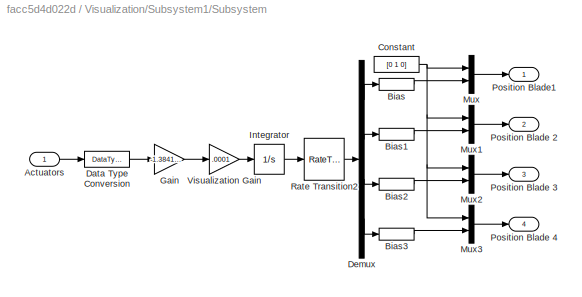
BLOCK [SubSystem] Visualization/Subsystem1/Subsystem
  Ports = [1, 4]
  RequestExecContextInheritance = off
BLOCK [Inport] Visualization/Subsystem1/Subsystem/Actuators
  IconDisplay = Port number
BLOCK [Bias] Visualization/Subsystem1/Subsystem/Bias
  Bias = .1
  SaturateOnIntegerOverflow = off
BLOCK [Bias] Visualization/Subsystem1/Subsystem/Bias1
  Bias = -.3
  SaturateOnIntegerOverflow = off
BLOCK [Bias] Visualization/Subsystem1/Subsystem/Bias2
  Bias = .5
  SaturateOnIntegerOverflow = off
BLOCK [Bias] Visualization/Subsystem1/Subsystem/Bias3
  Bias = .7
  SaturateOnIntegerOverflow = off
BLOCK [Constant] Visualization/Subsystem1/Subsystem/Constant
  Value = [0 1 0]
BLOCK [DataTypeConversion] Visualization/Subsystem1/Subsystem/Data Type Conversion
  OutDataTypeStr = double
  RndMeth = Floor
  SaturateOnIntegerOverflow = off
BLOCK [Demux] Visualization/Subsystem1/Subsystem/Demux
  DisplayOption = bar
  Ports = [1, 4]
BLOCK [Gain] Visualization/Subsystem1/Subsystem/Gain
  Gain = -1.3841e+04
  OutDataTypeStr = Inherit: Inherit via internal rule
  ParamDataTypeStr = Inherit: Inherit via internal rule
  SaturateOnIntegerOverflow = off
BLOCK [Integrator] Visualization/Subsystem1/Subsystem/Integrator
  InitialCondition = [.1  .2 -.3 -.4]
  Ports = [1, 1]
  WrapState = on
  WrappedStateLowerValue = -2*pi
  WrappedStateUpperValue = 2*pi
BLOCK [Mux] Visualization/Subsystem1/Subsystem/Mux
  DisplayOption = bar
  Inputs = 2
  Ports = [2, 1]
BLOCK [Mux] Visualization/Subsystem1/Subsystem/Mux1
  DisplayOption = bar
  Inputs = 2
  Ports = [2, 1]
BLOCK [Mux] Visualization/Subsystem1/Subsystem/Mux2
  DisplayOption = bar
  Inputs = 2
  Ports = [2, 1]
BLOCK [Mux] Visualization/Subsystem1/Subsystem/Mux3
  DisplayOption = bar
  Inputs = 2
  Ports = [2, 1]
BLOCK [Outport] Visualization/Subsystem1/Subsystem/Position Blade 2
  IconDisplay = Port number
  Port = 2
BLOCK [Outport] Visualization/Subsystem1/Subsystem/Position Blade 3
  IconDisplay = Port number
  Port = 3
BLOCK [Outport] Visualization/Subsystem1/Subsystem/Position Blade 4
  IconDisplay = Port number
  Port = 4
BLOCK [Outport] Visualization/Subsystem1/Subsystem/Position Blade1
  IconDisplay = Port number
BLOCK [RateTransition] Visualization/Subsystem1/Subsystem/Rate Transition2
BLOCK [Gain] Visualization/Subsystem1/Subsystem/Visualization Gain
  Gain = .0001
  OutDataTypeStr = Inherit: Inherit via internal rule
  ParamDataTypeStr = Inherit: Inherit via internal rule
  SaturateOnIntegerOverflow = off
BLOCK [Reference] Visualization/Subsystem1/VR Sink  REF=vrlib/VR Sink
  InstantiateOnLoad = on
  Ports = [8]
  SourceBlock = vrlib/VR Sink
  SourceProductBaseCode = VR
  SourceProductName = Simulink 3D Animation
  SourceType = Virtual Reality Sink
BLOCK [Sum] Visualization/Sum
  IconShape = round
  InputSameDT = off
  Inputs = |+-
  OutDataTypeStr = single
  Ports = [2, 1]
  SaturateOnIntegerOverflow = off
BLOCK [Sum] Visualization/Sum1
  IconShape = round
  InputSameDT = off
  Inputs = |++
  OutDataTypeStr = Inherit: Inherit via internal rule
  Ports = [2, 1]
  SaturateOnIntegerOverflow = off
LINE Altitude_Controller/Constant:1 -> Altitude_Controller/PID_Controller:2
LINE Altitude_Controller/Gain:1 -> Altitude_Controller/PID_Controller:1
LINE Altitude_Controller/PID_Controller/Add:1 -> Altitude_Controller/PID_Controller/u:1
LINE Altitude_Controller/PID_Controller/D_Control/DT1_Filter/Discrete-Time Integrator1:1 -> Altitude_Controller/PID_Controller/D_Control/DT1_Filter/Sum5:2
LINE Altitude_Controller/PID_Controller/D_Control/DT1_Filter/Sum5:1 -> Altitude_Controller/PID_Controller/D_Control/DT1_Filter/k_pt:1
NET Altitude_Controller/PID_Controller/D_Control/DT1_Filter/k_pt:1 -> Altitude_Controller/PID_Controller/D_Control/DT1_Filter/Discrete-Time Integrator1:1, Altitude_Controller/PID_Controller/D_Control/DT1_Filter/y:1
LINE Altitude_Controller/PID_Controller/D_Control/DT1_Filter/reset:1 -> Altitude_Controller/PID_Controller/D_Control/DT1_Filter/Discrete-Time Integrator1:2
LINE Altitude_Controller/PID_Controller/D_Control/DT1_Filter/u:1 -> Altitude_Controller/PID_Controller/D_Control/DT1_Filter/Sum5:1
LINE Altitude_Controller/PID_Controller/D_Control/DT1_Filter:1 -> Altitude_Controller/PID_Controller/D_Control/Multiply:2
LINE Altitude_Controller/PID_Controller/D_Control/Multiply:1 -> Altitude_Controller/PID_Controller/D_Control/Saturation:1
LINE Altitude_Controller/PID_Controller/D_Control/Saturation:1 -> Altitude_Controller/PID_Controller/D_Control/d_out:1
LINE Altitude_Controller/PID_Controller/D_Control/err:1 -> Altitude_Controller/PID_Controller/D_Control/DT1_Filter:1
LINE Altitude_Controller/PID_Controller/D_Control/kd:1 -> Altitude_Controller/PID_Controller/D_Control/Multiply:1
LINE Altitude_Controller/PID_Controller/D_Control/reset:1 -> Altitude_Controller/PID_Controller/D_Control/DT1_Filter:2
LINE Altitude_Controller/PID_Controller/D_Control:1 -> Altitude_Controller/PID_Controller/Add:3
LINE Altitude_Controller/PID_Controller/I_Control/Constant:1 -> Altitude_Controller/PID_Controller/I_Control/Discrete-Time Integrator:3
LINE Altitude_Controller/PID_Controller/I_Control/Discrete-Time Integrator:1 -> Altitude_Controller/PID_Controller/I_Control/Saturation:1
LINE Altitude_Controller/PID_Controller/I_Control/Multiply:1 -> Altitude_Controller/PID_Controller/I_Control/Discrete-Time Integrator:1
LINE Altitude_Controller/PID_Controller/I_Control/Saturation:1 -> Altitude_Controller/PID_Controller/I_Control/i_out:1
LINE Altitude_Controller/PID_Controller/I_Control/err:1 -> Altitude_Controller/PID_Controller/I_Control/Multiply:2
LINE Altitude_Controller/PID_Controller/I_Control/ki:1 -> Altitude_Controller/PID_Controller/I_Control/Multiply:1
LINE Altitude_Controller/PID_Controller/I_Control/reset:1 -> Altitude_Controller/PID_Controller/I_Control/Discrete-Time Integrator:2
LINE Altitude_Controller/PID_Controller/I_Control:1 -> Altitude_Controller/PID_Controller/Add:2
LINE Altitude_Controller/PID_Controller/P_Control/Multiply:1 -> Altitude_Controller/PID_Controller/P_Control/p_out:1
LINE Altitude_Controller/PID_Controller/P_Control/err:1 -> Altitude_Controller/PID_Controller/P_Control/Multiply:2
LINE Altitude_Controller/PID_Controller/P_Control/kp:1 -> Altitude_Controller/PID_Controller/P_Control/Multiply:1
LINE Altitude_Controller/PID_Controller/P_Control:1 -> Altitude_Controller/PID_Controller/Add:1
NET Altitude_Controller/PID_Controller/err:1 -> Altitude_Controller/PID_Controller/D_Control:1, Altitude_Controller/PID_Controller/I_Control:1, Altitude_Controller/PID_Controller/P_Control:1
NET Altitude_Controller/PID_Controller/reset:1 -> Altitude_Controller/PID_Controller/D_Control:2, Altitude_Controller/PID_Controller/I_Control:2
LINE Altitude_Controller/PID_Controller:1 -> Altitude_Controller/Sum:1
LINE Altitude_Controller/Saturation:1 -> Altitude_Controller/base_throttle:1
LINE Altitude_Controller/Subtract:1 -> Altitude_Controller/Gain:1
LINE Altitude_Controller/Sum:1 -> Altitude_Controller/Saturation:1
LINE Altitude_Controller/altitude_m:1 -> Altitude_Controller/Subtract:2
LINE Altitude_Controller/altitude_sp_m:1 -> Altitude_Controller/Subtract:1
LINE Altitude_Controller/hover_throttle:1 -> Altitude_Controller/Sum:2
LINE Altitude_Controller:1 -> Control_Allocation:2
LINE Attitude_Controller:1 -> Control_Allocation:1
LINE Bus Selector1:1 -> Selector:1
LINE Bus Selector:1 -> Visualization:1
LINE Bus Selector:2 -> Visualization:2
LINE Cmd_Generate/Plant_States:1 -> Cmd_Generate/Subsystem1:1
LINE Cmd_Generate/Subsystem/Bus Assignment:1 -> Cmd_Generate/Subsystem/Out1:1
LINE Cmd_Generate/Subsystem/Constant4:1 -> Cmd_Generate/Subsystem/Bus Assignment:5
LINE Cmd_Generate/Subsystem/Constant5:1 -> Cmd_Generate/Subsystem/Bus Assignment:6
LINE Cmd_Generate/Subsystem/Constant6:1 -> Cmd_Generate/Subsystem/Bus Assignment:7
LINE Cmd_Generate/Subsystem/Constant:1 -> Cmd_Generate/Subsystem/Bus Assignment:1
LINE Cmd_Generate/Subsystem/Demux1:1 -> Cmd_Generate/Subsystem/Gain:1
LINE Cmd_Generate/Subsystem/Demux1:2 -> Cmd_Generate/Subsystem/Gain1:1
LINE Cmd_Generate/Subsystem/Demux1:4 -> Cmd_Generate/Subsystem/Gain2:1
LINE Cmd_Generate/Subsystem/Demux:1 -> Cmd_Generate/Subsystem/Mux:1
LINE Cmd_Generate/Subsystem/Demux:2 -> Cmd_Generate/Subsystem/Mux:2
LINE Cmd_Generate/Subsystem/Demux:3 -> Cmd_Generate/Subsystem/Mux:3
LINE Cmd_Generate/Subsystem/Demux:4 -> Cmd_Generate/Subsystem/Mux:4
LINE Cmd_Generate/Subsystem/Gain1:1 -> Cmd_Generate/Subsystem/Bus Assignment:3
LINE Cmd_Generate/Subsystem/Gain2:1 -> Cmd_Generate/Subsystem/Bus Assignment:4
LINE Cmd_Generate/Subsystem/Gain:1 -> Cmd_Generate/Subsystem/Bus Assignment:2
LINE Cmd_Generate/Subsystem/Mux:1 -> Cmd_Generate/Subsystem/Demux1:1
LINE Cmd_Generate/Subsystem/S-Function:1 -> Cmd_Generate/Subsystem/Demux:1
LINE Cmd_Generate/Subsystem1/Bus Assignment1:1 -> Cmd_Generate/Subsystem1/Out1:1
LINE Cmd_Generate/Subsystem1/Bus Selector:1 -> Cmd_Generate/Subsystem1/Demux:1
LINE Cmd_Generate/Subsystem1/Bus Selector:2 -> Cmd_Generate/Subsystem1/Demux1:1
LINE Cmd_Generate/Subsystem1/Constant7:1 -> Cmd_Generate/Subsystem1/Bus Assignment1:1
LINE Cmd_Generate/Subsystem1/Demux1:1 -> Cmd_Generate/Subsystem1/Bus Assignment1:5
LINE Cmd_Generate/Subsystem1/Demux1:2 -> Cmd_Generate/Subsystem1/Bus Assignment1:6
LINE Cmd_Generate/Subsystem1/Demux1:3 -> Cmd_Generate/Subsystem1/Bus Assignment1:7
LINE Cmd_Generate/Subsystem1/Demux:1 -> Cmd_Generate/Subsystem1/Bus Assignment1:2
LINE Cmd_Generate/Subsystem1/Demux:2 -> Cmd_Generate/Subsystem1/Bus Assignment1:3
LINE Cmd_Generate/Subsystem1/Demux:3 -> Cmd_Generate/Subsystem1/Bus Assignment1:4
LINE Cmd_Generate/Subsystem1/In1:1 -> Cmd_Generate/Subsystem1/Bus Selector:1
LINE Cmd_Generate/Subsystem1:1 -> Cmd_Generate/states:1
LINE Cmd_Generate/Subsystem2/Bus Assignment2:1 -> Cmd_Generate/Subsystem2/Out1:1
LINE Cmd_Generate/Subsystem2/Constant10:1 -> Cmd_Generate/Subsystem2/Bus Assignment2:3
LINE Cmd_Generate/Subsystem2/Constant11:1 -> Cmd_Generate/Subsystem2/Bus Assignment2:4
LINE Cmd_Generate/Subsystem2/Constant8:1 -> Cmd_Generate/Subsystem2/Bus Assignment2:1
LINE Cmd_Generate/Subsystem2/Constant9:1 -> Cmd_Generate/Subsystem2/Bus Assignment2:2
LINE Cmd_Generate/Subsystem2:1 -> Cmd_Generate/command:1
LINE Cmd_Generate/Subsystem:1 -> Cmd_Generate/refenrence:1
LINE Cmd_Generate:1 -> Attitude_Controller:1
LINE Cmd_Generate:2 -> Attitude_Controller:2
LINE Cmd_Generate:3 -> Attitude_Controller:3
LINE Constant1:1 -> Plant:2
LINE Constant:1 -> Altitude_Controller:1
LINE Control_Allocation/Add1:1 -> Control_Allocation/Saturation:1
LINE Control_Allocation/Add:1 -> Control_Allocation/pwm:1
LINE Control_Allocation/Bus Selector:1 -> Control_Allocation/Mux:1
LINE Control_Allocation/Bus Selector:2 -> Control_Allocation/Mux:2
LINE Control_Allocation/Bus Selector:3 -> Control_Allocation/Mux:3
LINE Control_Allocation/Constant6:1 -> Control_Allocation/Multiply:1
LINE Control_Allocation/Constant:1 -> Control_Allocation/Add:2
LINE Control_Allocation/Gain:1 -> Control_Allocation/Add:1
LINE Control_Allocation/Multiply:1 -> Control_Allocation/Add1:1
LINE Control_Allocation/Mux:1 -> Control_Allocation/Multiply:2
LINE Control_Allocation/Saturation:1 -> Control_Allocation/Gain:1
LINE Control_Allocation/base_throttle:1 -> Control_Allocation/Add1:2
LINE Control_Allocation/u:1 -> Control_Allocation/Bus Selector:1
LINE Control_Allocation:1 -> Plant:1
NET Delay:1 -> Bus Selector1:1, Cmd_Generate:1
NET Plant:1 -> Bus Selector:1, Delay:1
LINE Selector:1 -> Altitude_Controller:2
LINE Visualization/Actuators:1 -> Visualization/Sum:1
LINE Visualization/Bus Creator:1 -> Visualization/Subsystem1:1
LINE Visualization/Constant4:1 -> Visualization/Sum1:2
LINE Visualization/Constant:1 -> Visualization/Sum:2
LINE Visualization/Data Type Conversion:1 -> Visualization/Bus Creator:1
LINE Visualization/Demux:1 -> Visualization/Gain1:1
LINE Visualization/Demux:2 -> Visualization/Gain2:1
LINE Visualization/Demux:3 -> Visualization/Mux:1
LINE Visualization/Demux:4 -> Visualization/Mux:2
LINE Visualization/Euler:1 -> Visualization/Data Type Conversion:1
LINE Visualization/Gain1:1 -> Visualization/Mux:4
LINE Visualization/Gain2:1 -> Visualization/Mux:3
LINE Visualization/Gain:1 -> Visualization/Demux:1
LINE Visualization/Mux:1 -> Visualization/Subsystem1:2
LINE Visualization/Pos:1 -> Visualization/Sum1:1
LINE Visualization/Subsystem1/Actuators1:1 -> Visualization/Subsystem1/Subsystem:1
LINE Visualization/Subsystem1/Axes to VR Axes Camera Chase/Demux:1 -> Visualization/Subsystem1/Axes to VR Axes Camera Chase/Mux:1
LINE Visualization/Subsystem1/Axes to VR Axes Camera Chase/Demux:2 -> Visualization/Subsystem1/Axes to VR Axes Camera Chase/Mux:3
LINE Visualization/Subsystem1/Axes to VR Axes Camera Chase/Demux:3 -> Visualization/Subsystem1/Axes to VR Axes Camera Chase/rad-->deg1:1
LINE Visualization/Subsystem1/Axes to VR Axes Camera Chase/Mux:1 -> Visualization/Subsystem1/Axes to VR Axes Camera Chase/Xe VR:1
LINE Visualization/Subsystem1/Axes to VR Axes Camera Chase/Xe:1 -> Visualization/Subsystem1/Axes to VR Axes Camera Chase/Demux:1
LINE Visualization/Subsystem1/Axes to VR Axes Camera Chase/rad-->deg1:1 -> Visualization/Subsystem1/Axes to VR Axes Camera Chase/Mux:2
LINE Visualization/Subsystem1/Axes to VR Axes Camera Chase:1 -> Visualization/Subsystem1/Rate Transition3:1
LINE Visualization/Subsystem1/Axes to VR Axes Camera Iso/Demux:1 -> Visualization/Subsystem1/Axes to VR Axes Camera Iso/Mux:1
LINE Visualization/Subsystem1/Axes to VR Axes Camera Iso/Demux:2 -> Visualization/Subsystem1/Axes to VR Axes Camera Iso/Mux:3
LINE Visualization/Subsystem1/Axes to VR Axes Camera Iso/Demux:3 -> Visualization/Subsystem1/Axes to VR Axes Camera Iso/rad-->deg1:1
LINE Visualization/Subsystem1/Axes to VR Axes Camera Iso/Mux:1 -> Visualization/Subsystem1/Axes to VR Axes Camera Iso/Xe VR:1
LINE Visualization/Subsystem1/Axes to VR Axes Camera Iso/Xe:1 -> Visualization/Subsystem1/Axes to VR Axes Camera Iso/Demux:1
LINE Visualization/Subsystem1/Axes to VR Axes Camera Iso/rad-->deg1:1 -> Visualization/Subsystem1/Axes to VR Axes Camera Iso/Mux:2
LINE Visualization/Subsystem1/Axes to VR Axes Camera Iso:1 -> Visualization/Subsystem1/Rate Transition2:1
LINE Visualization/Subsystem1/Axes to VR Axes/Demux:1 -> Visualization/Subsystem1/Axes to VR Axes/Mux:1
LINE Visualization/Subsystem1/Axes to VR Axes/Demux:2 -> Visualization/Subsystem1/Axes to VR Axes/Mux:3
LINE Visualization/Subsystem1/Axes to VR Axes/Demux:3 -> Visualization/Subsystem1/Axes to VR Axes/rad-->deg1:1
LINE Visualization/Subsystem1/Axes to VR Axes/Mux:1 -> Visualization/Subsystem1/Axes to VR Axes/Xe VR:1
LINE Visualization/Subsystem1/Axes to VR Axes/Xe:1 -> Visualization/Subsystem1/Axes to VR Axes/Demux:1
LINE Visualization/Subsystem1/Axes to VR Axes/rad-->deg1:1 -> Visualization/Subsystem1/Axes to VR Axes/Mux:2
NET Visualization/Subsystem1/Axes to VR Axes:1 -> Visualization/Subsystem1/Display1:1, Visualization/Subsystem1/Rate Transition1:1
LINE Visualization/Subsystem1/Bus Selector:1 -> Visualization/Subsystem1/Euler to VR:1
NET Visualization/Subsystem1/Bus Selector:2 -> Visualization/Subsystem1/Axes to VR Axes:1, Visualization/Subsystem1/Camera bias Chase:1, Visualization/Subsystem1/Camera bias Iso:1
LINE Visualization/Subsystem1/Camera bias Chase:1 -> Visualization/Subsystem1/Axes to VR Axes Camera Chase:1
LINE Visualization/Subsystem1/Camera bias Iso:1 -> Visualization/Subsystem1/Axes to VR Axes Camera Iso:1
LINE Visualization/Subsystem1/Euler to VR/Axis Angle Vector/2:1 -> Visualization/Subsystem1/Euler to VR/Axis Angle Vector/Mux:2
LINE Visualization/Subsystem1/Euler to VR/Axis Angle Vector/Constant:1 -> Visualization/Subsystem1/Euler to VR/Axis Angle Vector/Switch:3
LINE Visualization/Subsystem1/Euler to VR/Axis Angle Vector/Demux:1 -> Visualization/Subsystem1/Euler to VR/Axis Angle Vector/Trigonometric Function2:1
LINE Visualization/Subsystem1/Euler to VR/Axis Angle Vector/Demux:2 -> Visualization/Subsystem1/Euler to VR/Axis Angle Vector/Product:1
LINE Visualization/Subsystem1/Euler to VR/Axis Angle Vector/Mux:1 -> Visualization/Subsystem1/Euler to VR/Axis Angle Vector/e0_norm:1
LINE Visualization/Subsystem1/Euler to VR/Axis Angle Vector/Product:1 -> Visualization/Subsystem1/Euler to VR/Axis Angle Vector/Mux:1
LINE Visualization/Subsystem1/Euler to VR/Axis Angle Vector/Switch:1 -> Visualization/Subsystem1/Euler to VR/Axis Angle Vector/Product:2
NET Visualization/Subsystem1/Euler to VR/Axis Angle Vector/Trigonometric Function2:1 -> Visualization/Subsystem1/Euler to VR/Axis Angle Vector/2:1, Visualization/Subsystem1/Euler to VR/Axis Angle Vector/Trigonometric Function:1
NET Visualization/Subsystem1/Euler to VR/Axis Angle Vector/Trigonometric Function:1 -> Visualization/Subsystem1/Euler to VR/Axis Angle Vector/Switch:1, Visualization/Subsystem1/Euler to VR/Axis Angle Vector/Switch:2
LINE Visualization/Subsystem1/Euler to VR/Axis Angle Vector/e0:1 -> Visualization/Subsystem1/Euler to VR/Axis Angle Vector/Demux:1
LINE Visualization/Subsystem1/Euler to VR/Axis Angle Vector:1 -> Visualization/Subsystem1/Euler to VR/Axis Angle:1
NET Visualization/Subsystem1/Euler to VR/Euler Angles:1 -> Visualization/Subsystem1/Euler to VR/Selector1:1, Visualization/Subsystem1/Euler to VR/Selector2:1, Visualization/Subsystem1/Euler to VR/Selector:1
LINE Visualization/Subsystem1/Euler to VR/Mux1:1 -> Visualization/Subsystem1/Euler to VR/Quaternion Normalization1:1
LINE Visualization/Subsystem1/Euler to VR/Mux2:1 -> Visualization/Subsystem1/Euler to VR/Quaternion Normalization2:1
LINE Visualization/Subsystem1/Euler to VR/Mux:1 -> Visualization/Subsystem1/Euler to VR/Quaternion Normalization:1
LINE Visualization/Subsystem1/Euler to VR/Quaternion Multiplication (Pitch & Yaw):1 -> Visualization/Subsystem1/Euler to VR/Quaternion Multiplication (Roll):1
LINE Visualization/Subsystem1/Euler to VR/Quaternion Multiplication (Roll):1 -> Visualization/Subsystem1/Euler to VR/Axis Angle Vector:1
NET Visualization/Subsystem1/Euler to VR/Quaternion Normalization/1//2:1 -> Visualization/Subsystem1/Euler to VR/Quaternion Normalization/Trigonometric Function1:1, Visualization/Subsystem1/Euler to VR/Quaternion Normalization/Trigonometric Function:1
LINE Visualization/Subsystem1/Euler to VR/Quaternion Normalization/Demux:1 -> Visualization/Subsystem1/Euler to VR/Quaternion Normalization/1//2:1
LINE Visualization/Subsystem1/Euler to VR/Quaternion Normalization/Demux:2 -> Visualization/Subsystem1/Euler to VR/Quaternion Normalization/Product:2
LINE Visualization/Subsystem1/Euler to VR/Quaternion Normalization/Mux:1 -> Visualization/Subsystem1/Euler to VR/Quaternion Normalization/e0_norm:1
LINE Visualization/Subsystem1/Euler to VR/Quaternion Normalization/Product:1 -> Visualization/Subsystem1/Euler to VR/Quaternion Normalization/Mux:2
LINE Visualization/Subsystem1/Euler to VR/Quaternion Normalization/Trigonometric Function1:1 -> Visualization/Subsystem1/Euler to VR/Quaternion Normalization/Mux:1
LINE Visualization/Subsystem1/Euler to VR/Quaternion Normalization/Trigonometric Function:1 -> Visualization/Subsystem1/Euler to VR/Quaternion Normalization/Product:1
LINE Visualization/Subsystem1/Euler to VR/Quaternion Normalization/e0:1 -> Visualization/Subsystem1/Euler to VR/Quaternion Normalization/Demux:1
NET Visualization/Subsystem1/Euler to VR/Quaternion Normalization1/1//2:1 -> Visualization/Subsystem1/Euler to VR/Quaternion Normalization1/Trigonometric Function1:1, Visualization/Subsystem1/Euler to VR/Quaternion Normalization1/Trigonometric Function:1
LINE Visualization/Subsystem1/Euler to VR/Quaternion Normalization1/Demux:1 -> Visualization/Subsystem1/Euler to VR/Quaternion Normalization1/1//2:1
LINE Visualization/Subsystem1/Euler to VR/Quaternion Normalization1/Demux:2 -> Visualization/Subsystem1/Euler to VR/Quaternion Normalization1/Product:2
LINE Visualization/Subsystem1/Euler to VR/Quaternion Normalization1/Mux:1 -> Visualization/Subsystem1/Euler to VR/Quaternion Normalization1/e0_norm:1
LINE Visualization/Subsystem1/Euler to VR/Quaternion Normalization1/Product:1 -> Visualization/Subsystem1/Euler to VR/Quaternion Normalization1/Mux:2
LINE Visualization/Subsystem1/Euler to VR/Quaternion Normalization1/Trigonometric Function1:1 -> Visualization/Subsystem1/Euler to VR/Quaternion Normalization1/Mux:1
LINE Visualization/Subsystem1/Euler to VR/Quaternion Normalization1/Trigonometric Function:1 -> Visualization/Subsystem1/Euler to VR/Quaternion Normalization1/Product:1
LINE Visualization/Subsystem1/Euler to VR/Quaternion Normalization1/e0:1 -> Visualization/Subsystem1/Euler to VR/Quaternion Normalization1/Demux:1
LINE Visualization/Subsystem1/Euler to VR/Quaternion Normalization1:1 -> Visualization/Subsystem1/Euler to VR/Quaternion Multiplication (Pitch & Yaw):2
NET Visualization/Subsystem1/Euler to VR/Quaternion Normalization2/1//2:1 -> Visualization/Subsystem1/Euler to VR/Quaternion Normalization2/Trigonometric Function1:1, Visualization/Subsystem1/Euler to VR/Quaternion Normalization2/Trigonometric Function:1
LINE Visualization/Subsystem1/Euler to VR/Quaternion Normalization2/Demux:1 -> Visualization/Subsystem1/Euler to VR/Quaternion Normalization2/1//2:1
LINE Visualization/Subsystem1/Euler to VR/Quaternion Normalization2/Demux:2 -> Visualization/Subsystem1/Euler to VR/Quaternion Normalization2/Product:2
LINE Visualization/Subsystem1/Euler to VR/Quaternion Normalization2/Mux:1 -> Visualization/Subsystem1/Euler to VR/Quaternion Normalization2/e0_norm:1
LINE Visualization/Subsystem1/Euler to VR/Quaternion Normalization2/Product:1 -> Visualization/Subsystem1/Euler to VR/Quaternion Normalization2/Mux:2
LINE Visualization/Subsystem1/Euler to VR/Quaternion Normalization2/Trigonometric Function1:1 -> Visualization/Subsystem1/Euler to VR/Quaternion Normalization2/Mux:1
LINE Visualization/Subsystem1/Euler to VR/Quaternion Normalization2/Trigonometric Function:1 -> Visualization/Subsystem1/Euler to VR/Quaternion Normalization2/Product:1
LINE Visualization/Subsystem1/Euler to VR/Quaternion Normalization2/e0:1 -> Visualization/Subsystem1/Euler to VR/Quaternion Normalization2/Demux:1
LINE Visualization/Subsystem1/Euler to VR/Quaternion Normalization2:1 -> Visualization/Subsystem1/Euler to VR/Quaternion Multiplication (Pitch & Yaw):1
LINE Visualization/Subsystem1/Euler to VR/Quaternion Normalization:1 -> Visualization/Subsystem1/Euler to VR/Quaternion Multiplication (Roll):2
LINE Visualization/Subsystem1/Euler to VR/Selector1:1 -> Visualization/Subsystem1/Euler to VR/Mux1:1
LINE Visualization/Subsystem1/Euler to VR/Selector2:1 -> Visualization/Subsystem1/Euler to VR/Mux:1
LINE Visualization/Subsystem1/Euler to VR/Selector:1 -> Visualization/Subsystem1/Euler to VR/Mux2:1
LINE Visualization/Subsystem1/Euler to VR/Vr Pitch Axes:1 -> Visualization/Subsystem1/Euler to VR/Mux1:2
LINE Visualization/Subsystem1/Euler to VR/Vr Roll Axes:1 -> Visualization/Subsystem1/Euler to VR/Mux:2
LINE Visualization/Subsystem1/Euler to VR/Vr Yaw Axes:1 -> Visualization/Subsystem1/Euler to VR/Mux2:2
NET Visualization/Subsystem1/Euler to VR:1 -> Visualization/Subsystem1/Display:1, Visualization/Subsystem1/Rate Transition:1
LINE Visualization/Subsystem1/Rate Transition1:1 -> Visualization/Subsystem1/VR Sink:2
LINE Visualization/Subsystem1/Rate Transition2:1 -> Visualization/Subsystem1/VR Sink:7
LINE Visualization/Subsystem1/Rate Transition3:1 -> Visualization/Subsystem1/VR Sink:8
LINE Visualization/Subsystem1/Rate Transition:1 -> Visualization/Subsystem1/VR Sink:1
LINE Visualization/Subsystem1/States:1 -> Visualization/Subsystem1/Bus Selector:1
LINE Visualization/Subsystem1/Subsystem/Actuators:1 -> Visualization/Subsystem1/Subsystem/Data Type Conversion:1
LINE Visualization/Subsystem1/Subsystem/Bias1:1 -> Visualization/Subsystem1/Subsystem/Mux1:2
LINE Visualization/Subsystem1/Subsystem/Bias2:1 -> Visualization/Subsystem1/Subsystem/Mux2:2
LINE Visualization/Subsystem1/Subsystem/Bias3:1 -> Visualization/Subsystem1/Subsystem/Mux3:2
LINE Visualization/Subsystem1/Subsystem/Bias:1 -> Visualization/Subsystem1/Subsystem/Mux:2
NET Visualization/Subsystem1/Subsystem/Constant:1 -> Visualization/Subsystem1/Subsystem/Mux1:1, Visualization/Subsystem1/Subsystem/Mux2:1, Visualization/Subsystem1/Subsystem/Mux3:1, Visualization/Subsystem1/Subsystem/Mux:1
LINE Visualization/Subsystem1/Subsystem/Data Type Conversion:1 -> Visualization/Subsystem1/Subsystem/Gain:1
LINE Visualization/Subsystem1/Subsystem/Demux:1 -> Visualization/Subsystem1/Subsystem/Bias:1
LINE Visualization/Subsystem1/Subsystem/Demux:2 -> Visualization/Subsystem1/Subsystem/Bias1:1
LINE Visualization/Subsystem1/Subsystem/Demux:3 -> Visualization/Subsystem1/Subsystem/Bias2:1
LINE Visualization/Subsystem1/Subsystem/Demux:4 -> Visualization/Subsystem1/Subsystem/Bias3:1
LINE Visualization/Subsystem1/Subsystem/Gain:1 -> Visualization/Subsystem1/Subsystem/Visualization Gain:1
LINE Visualization/Subsystem1/Subsystem/Integrator:1 -> Visualization/Subsystem1/Subsystem/Rate Transition2:1
LINE Visualization/Subsystem1/Subsystem/Mux1:1 -> Visualization/Subsystem1/Subsystem/Position Blade 2:1
LINE Visualization/Subsystem1/Subsystem/Mux2:1 -> Visualization/Subsystem1/Subsystem/Position Blade 3:1
LINE Visualization/Subsystem1/Subsystem/Mux3:1 -> Visualization/Subsystem1/Subsystem/Position Blade 4:1
LINE Visualization/Subsystem1/Subsystem/Mux:1 -> Visualization/Subsystem1/Subsystem/Position Blade1:1
LINE Visualization/Subsystem1/Subsystem/Rate Transition2:1 -> Visualization/Subsystem1/Subsystem/Demux:1
LINE Visualization/Subsystem1/Subsystem/Visualization Gain:1 -> Visualization/Subsystem1/Subsystem/Integrator:1
LINE Visualization/Subsystem1/Subsystem:1 -> Visualization/Subsystem1/VR Sink:3
LINE Visualization/Subsystem1/Subsystem:2 -> Visualization/Subsystem1/VR Sink:4
LINE Visualization/Subsystem1/Subsystem:3 -> Visualization/Subsystem1/VR Sink:5
LINE Visualization/Subsystem1/Subsystem:4 -> Visualization/Subsystem1/VR Sink:6
LINE Visualization/Sum1:1 -> Visualization/Bus Creator:2
LINE Visualization/Sum:1 -> Visualization/Gain:1
note: NET lines group one-source signal fan-out (src -> all destinations, sorted); 1:1 wires keep LINE
